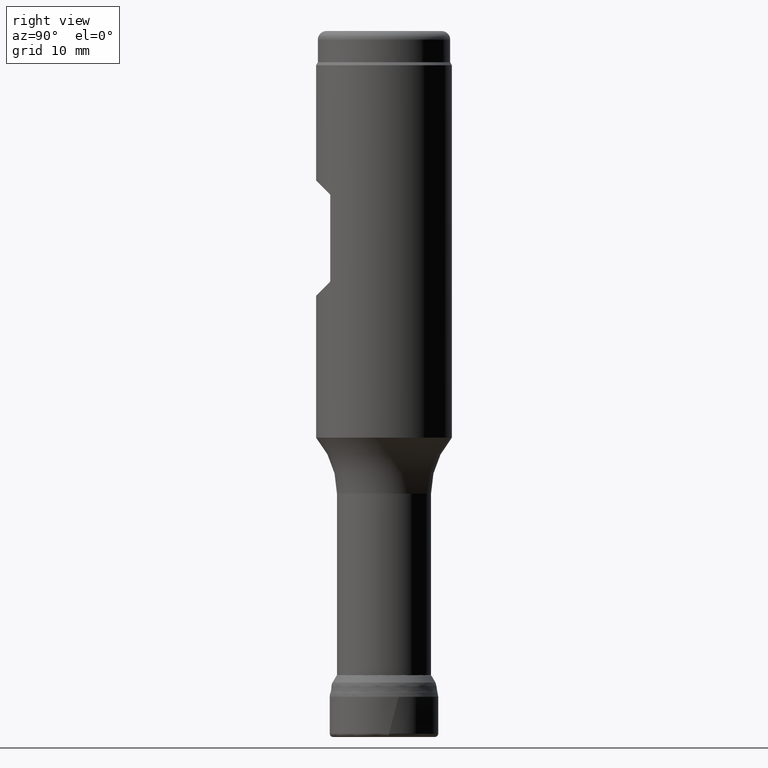
[diagram: clean part render]
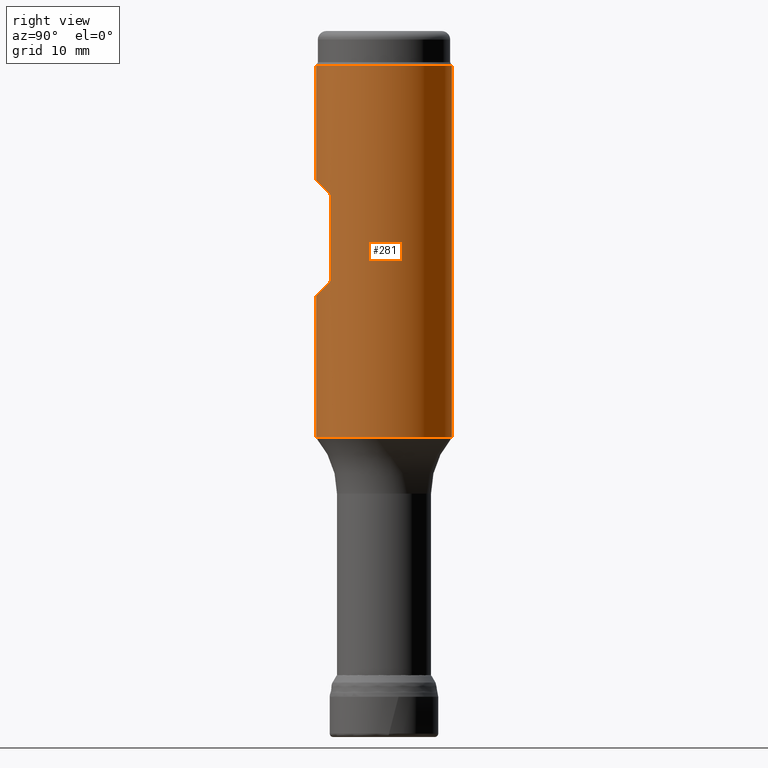
[diagram: same view with one face highlighted and labeled with its STEP entity id]
A machine part, right view. The second image highlights one B-rep face of the part: STEP entity #281.
In plain terms, the highlighted cylindrical surface (bore or boss wall) has radius 7.9375 mm, axis along (0, 0, 1).
Its self-contained STEP definition (entity closure, byte-faithful):
#160=LINE('',#1220,#172);
#161=LINE('',#1249,#173);
#172=VECTOR('',#797,1.);
#173=VECTOR('',#800,1.);
#184=ELLIPSE('',#714,11.2253201513365,7.9375);
#185=ELLIPSE('',#715,11.2253201513364,7.9375);
#187=CYLINDRICAL_SURFACE('',#718,7.9375);
#205=FACE_BOUND('',#342,.T.);
#206=FACE_BOUND('',#343,.T.);
#207=FACE_BOUND('',#344,.T.);
#281=ADVANCED_FACE('',(#205,#206,#207),#187,.T.);
#342=EDGE_LOOP('',(#426,#427,#428,#429,#430,#431,#432,#433));
#343=EDGE_LOOP('',(#434));
#344=EDGE_LOOP('',(#435));
#426=ORIENTED_EDGE('',*,*,#576,.F.);
#427=ORIENTED_EDGE('',*,*,#577,.F.);
#428=ORIENTED_EDGE('',*,*,#578,.F.);
#429=ORIENTED_EDGE('',*,*,#579,.F.);
#430=ORIENTED_EDGE('',*,*,#580,.F.);
#431=ORIENTED_EDGE('',*,*,#581,.F.);
#432=ORIENTED_EDGE('',*,*,#582,.F.);
#433=ORIENTED_EDGE('',*,*,#583,.F.);
#434=ORIENTED_EDGE('',*,*,#584,.T.);
#435=ORIENTED_EDGE('',*,*,#585,.F.);
#528=VERTEX_POINT('',#1205);
#529=VERTEX_POINT('',#1206);
#530=VERTEX_POINT('',#1208);
#531=VERTEX_POINT('',#1219);
#532=VERTEX_POINT('',#1221);
#533=VERTEX_POINT('',#1235);
#534=VERTEX_POINT('',#1237);
#535=VERTEX_POINT('',#1248);
#536=VERTEX_POINT('',#1251);
#537=VERTEX_POINT('',#1253);
#576=EDGE_CURVE('',#528,#529,#680,.T.);
#577=EDGE_CURVE('',#530,#528,#184,.T.);
#578=EDGE_CURVE('',#531,#530,#681,.T.);
#579=EDGE_CURVE('',#532,#531,#160,.T.);
#580=EDGE_CURVE('',#533,#532,#682,.T.);
#581=EDGE_CURVE('',#534,#533,#185,.T.);
#582=EDGE_CURVE('',#535,#534,#683,.T.);
#583=EDGE_CURVE('',#529,#535,#161,.T.);
#584=EDGE_CURVE('',#536,#536,#627,.T.);
#585=EDGE_CURVE('',#537,#537,#628,.T.);
#627=CIRCLE('',#716,7.9375);
#628=CIRCLE('',#717,7.9375);
#680=B_SPLINE_CURVE_WITH_KNOTS('',3,(#1192,#1193,#1194,#1195,#1196,#1197,
#1198,#1199,#1200,#1201,#1202,#1203,#1204),.UNSPECIFIED.,.F.,.F.,(4,3,3,
3,4),(0.,0.416171997328857,0.705158759588438,0.946516365666628,1.),
 .UNSPECIFIED.);
#681=B_SPLINE_CURVE_WITH_KNOTS('',3,(#1209,#1210,#1211,#1212,#1213,#1214,
#1215,#1216,#1217,#1218),.UNSPECIFIED.,.F.,.F.,(4,3,3,4),(0.,0.273570072187145,
0.544000931921155,1.),.UNSPECIFIED.);
#682=B_SPLINE_CURVE_WITH_KNOTS('',3,(#1222,#1223,#1224,#1225,#1226,#1227,
#1228,#1229,#1230,#1231,#1232,#1233,#1234),.UNSPECIFIED.,.F.,.F.,(4,3,3,
3,4),(0.,0.416171997328865,0.705158759588484,0.946516365666652,1.),
 .UNSPECIFIED.);
#683=B_SPLINE_CURVE_WITH_KNOTS('',3,(#1238,#1239,#1240,#1241,#1242,#1243,
#1244,#1245,#1246,#1247),.UNSPECIFIED.,.F.,.F.,(4,3,3,4),(0.,0.273570072187139,
0.544000931921168,1.),.UNSPECIFIED.);
#714=AXIS2_PLACEMENT_3D('',#1207,#795,#796);
#715=AXIS2_PLACEMENT_3D('',#1236,#798,#799);
#716=AXIS2_PLACEMENT_3D('',#1250,#801,#802);
#717=AXIS2_PLACEMENT_3D('',#1252,#803,#804);
#718=AXIS2_PLACEMENT_3D('',#1254,#805,#806);
#795=DIRECTION('',(-8.28344032153661E-16,-0.707106781186549,-0.707106781186546));
#796=DIRECTION('',(-8.28344032153658E-16,-0.707106781186546,0.707106781186549));
#797=DIRECTION('',(0.,1.17145536458252E-15,1.));
#798=DIRECTION('',(8.28344032153663E-16,-0.707106781186546,0.707106781186549));
#799=DIRECTION('',(-8.28344032153664E-16,0.707106781186549,0.707106781186546));
#800=DIRECTION('',(0.,-1.17145536458252E-15,-1.));
#801=DIRECTION('',(0.,1.17145536458252E-15,1.));
#802=DIRECTION('',(0.,-1.,8.74191357972564E-16));
#803=DIRECTION('',(0.,1.17145536458252E-15,1.));
#804=DIRECTION('',(0.,-1.,1.74838271594513E-15));
#805=DIRECTION('',(0.,1.17145536458252E-15,1.));
#806=DIRECTION('',(0.,-1.,1.17145536458252E-15));
#1192=CARTESIAN_POINT('',(-4.72983501705622,-6.37436796564396,63.5211929656441));
#1193=CARTESIAN_POINT('',(-4.75544329765824,-6.35536640455259,63.5021914045527));
#1194=CARTESIAN_POINT('',(-4.77949067454867,-6.33726947948323,63.4789887948896));
#1195=CARTESIAN_POINT('',(-4.79915209611507,-6.32234492956161,63.451265357245));
#1196=CARTESIAN_POINT('',(-4.81283824719091,-6.31195607521166,63.4319673042194));
#1197=CARTESIAN_POINT('',(-4.82461844288528,-6.30294142374037,63.4100290657561));
#1198=CARTESIAN_POINT('',(-4.83284179550232,-6.29662976755383,63.3863606618287));
#1199=CARTESIAN_POINT('',(-4.83971327832452,-6.29135570974733,63.3665832013949));
#1200=CARTESIAN_POINT('',(-4.84419828842563,-6.28789727336457,63.3451269226275));
#1201=CARTESIAN_POINT('',(-4.84555358093026,-6.28685268988649,63.323603611295));
#1202=CARTESIAN_POINT('',(-4.84585810484364,-6.28661797992719,63.3187674870093));
#1203=CARTESIAN_POINT('',(-4.84601114319809,-6.28649999999992,63.3139123147697));
#1204=CARTESIAN_POINT('',(-4.84601114319809,-6.28649999999992,63.3090609312881));
#1205=CARTESIAN_POINT('',(-4.72983501705622,-6.37436796564396,63.5211929656441));
#1206=CARTESIAN_POINT('',(-4.84601114319809,-6.28649999999992,63.3090609312881));
#1207=CARTESIAN_POINT('',(0.,6.69449547151087E-14,57.146825));
#1208=CARTESIAN_POINT('',(4.72983501705622,-6.37436796564396,63.5211929656441));
#1209=CARTESIAN_POINT('',(4.84601114319809,-6.28649999999992,63.3090609312881));
#1210=CARTESIAN_POINT('',(4.84601114319809,-6.28649999999992,63.333481364237));
#1211=CARTESIAN_POINT('',(4.84193413972311,-6.2896473721527,63.3582749509746));
#1212=CARTESIAN_POINT('',(4.83466398484775,-6.29523076651008,63.3809096168866));
#1213=CARTESIAN_POINT('',(4.82744170681857,-6.30077739200664,63.4033952245686));
#1214=CARTESIAN_POINT('',(4.81698625891171,-6.30878658127831,63.4244415023748));
#1215=CARTESIAN_POINT('',(4.8046935869148,-6.31813467614128,63.4431506510665));
#1216=CARTESIAN_POINT('',(4.78410622374127,-6.33379055827765,63.4744841185893));
#1217=CARTESIAN_POINT('',(4.75786413808581,-6.35357012045246,63.5003951204526));
#1218=CARTESIAN_POINT('',(4.72983501705622,-6.37436796564396,63.5211929656441));
#1219=CARTESIAN_POINT('',(4.84601114319809,-6.28649999999992,63.3090609312881));
#1220=CARTESIAN_POINT('',(4.84601114319807,-6.28650000000001,8.43503759160331E-15));
#1221=CARTESIAN_POINT('',(4.84601114319809,-6.28649999999994,53.3721890687119));
#1222=CARTESIAN_POINT('',(4.72983501705621,-6.37436796564397,53.160057034356));
#1223=CARTESIAN_POINT('',(4.75544329765823,-6.3553664045526,53.1790585954473));
#1224=CARTESIAN_POINT('',(4.77949067454867,-6.33726947948325,53.2022612051104));
#1225=CARTESIAN_POINT('',(4.79915209611506,-6.32234492956163,53.229984642755));
#1226=CARTESIAN_POINT('',(4.81283824719091,-6.31195607521167,53.2492826957806));
#1227=CARTESIAN_POINT('',(4.82461844288528,-6.30294142374039,53.2712209342439));
#1228=CARTESIAN_POINT('',(4.83284179550232,-6.29662976755384,53.2948893381714));
#1229=CARTESIAN_POINT('',(4.83971327832452,-6.29135570974734,53.3146667986051));
#1230=CARTESIAN_POINT('',(4.84419828842563,-6.28789727336459,53.3361230773726));
#1231=CARTESIAN_POINT('',(4.84555358093026,-6.2868526898865,53.357646388705));
#1232=CARTESIAN_POINT('',(4.84585810484364,-6.2866179799272,53.3624825129907));
#1233=CARTESIAN_POINT('',(4.84601114319808,-6.28649999999994,53.3673376852303));
#1234=CARTESIAN_POINT('',(4.84601114319808,-6.28649999999994,53.3721890687119));
#1235=CARTESIAN_POINT('',(4.72983501705621,-6.37436796564397,53.160057034356));
#1236=CARTESIAN_POINT('',(0.,6.97419215435859E-14,59.534425));
#1237=CARTESIAN_POINT('',(-4.72983501705621,-6.37436796564397,53.160057034356));
#1238=CARTESIAN_POINT('',(-4.84601114319809,-6.28649999999994,53.3721890687119));
#1239=CARTESIAN_POINT('',(-4.84601114319809,-6.28649999999994,53.347768635763));
#1240=CARTESIAN_POINT('',(-4.84193413972311,-6.28964737215271,53.3229750490255));
#1241=CARTESIAN_POINT('',(-4.83466398484775,-6.29523076651009,53.3003403831134));
#1242=CARTESIAN_POINT('',(-4.82744170681858,-6.30077739200665,53.2778547754314));
#1243=CARTESIAN_POINT('',(-4.81698625891171,-6.30878658127832,53.2568084976253));
#1244=CARTESIAN_POINT('',(-4.8046935869148,-6.31813467614129,53.2380993489336));
#1245=CARTESIAN_POINT('',(-4.78410622374127,-6.33379055827766,53.2067658814107));
#1246=CARTESIAN_POINT('',(-4.75786413808581,-6.35357012045248,53.1808548795475));
#1247=CARTESIAN_POINT('',(-4.72983501705621,-6.37436796564397,53.160057034356));
#1248=CARTESIAN_POINT('',(-4.84601114319809,-6.28649999999994,53.3721890687119));
#1249=CARTESIAN_POINT('',(-4.84601114319807,-6.28650000000001,8.43503759160331E-15));
#1250=CARTESIAN_POINT('',(0.,4.10023435068258E-14,35.0012));
#1251=CARTESIAN_POINT('',(0.,-7.93749999999996,35.0012));
#1252=CARTESIAN_POINT('',(0.,9.20178188879573E-14,78.55));
#1253=CARTESIAN_POINT('',(0.,-7.93749999999991,78.55));
#1254=CARTESIAN_POINT('',(0.,0.,0.));